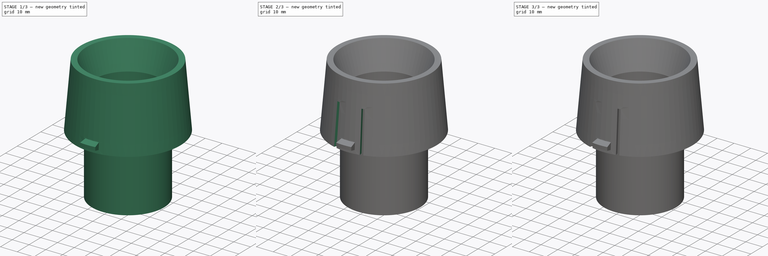
[diagram: build sequence overview — one tinted view per stage of 3, left to right]
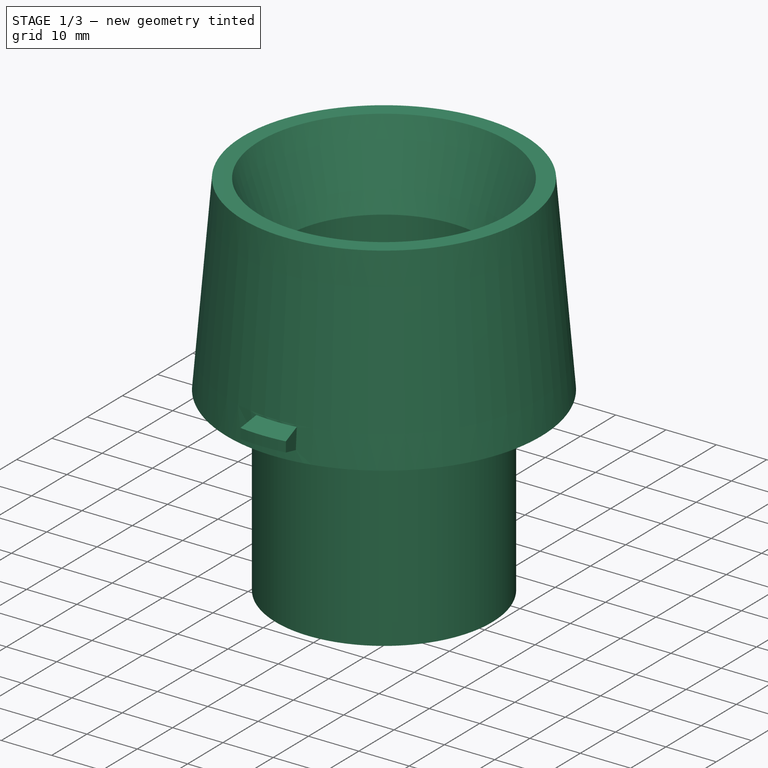
[diagram: stage 1 of 3 — iso view after this stage's code; geometry added in this stage tinted green]
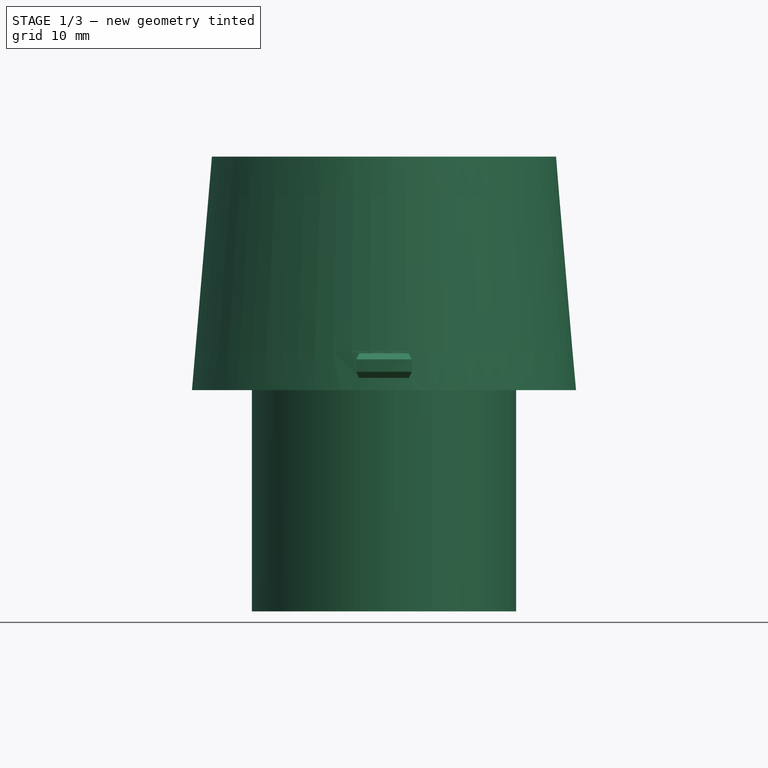
[diagram: stage 1 of 3 — front view after this stage's code; geometry added in this stage tinted green]
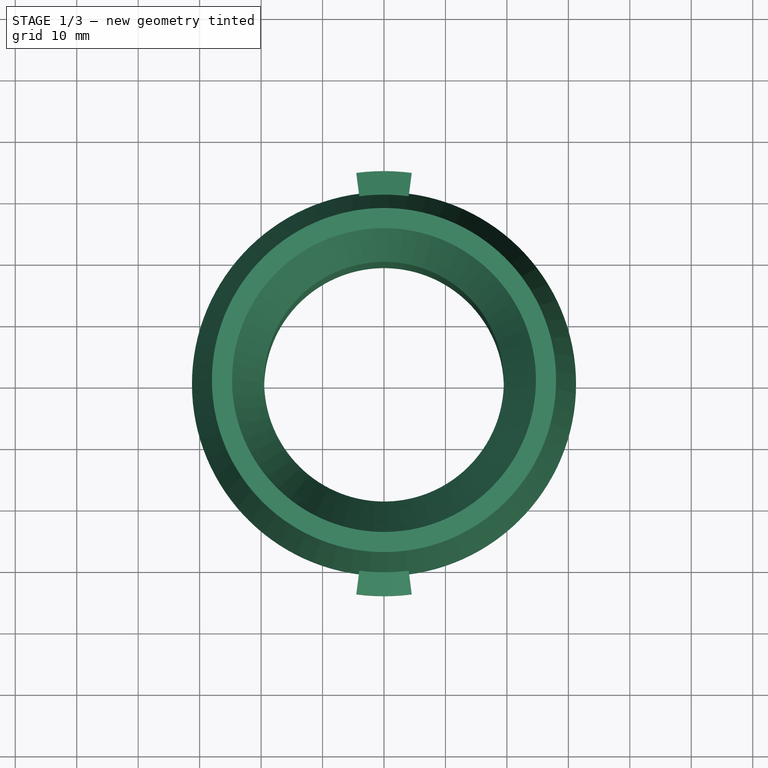
[diagram: stage 1 of 3 — top view after this stage's code; geometry added in this stage tinted green]
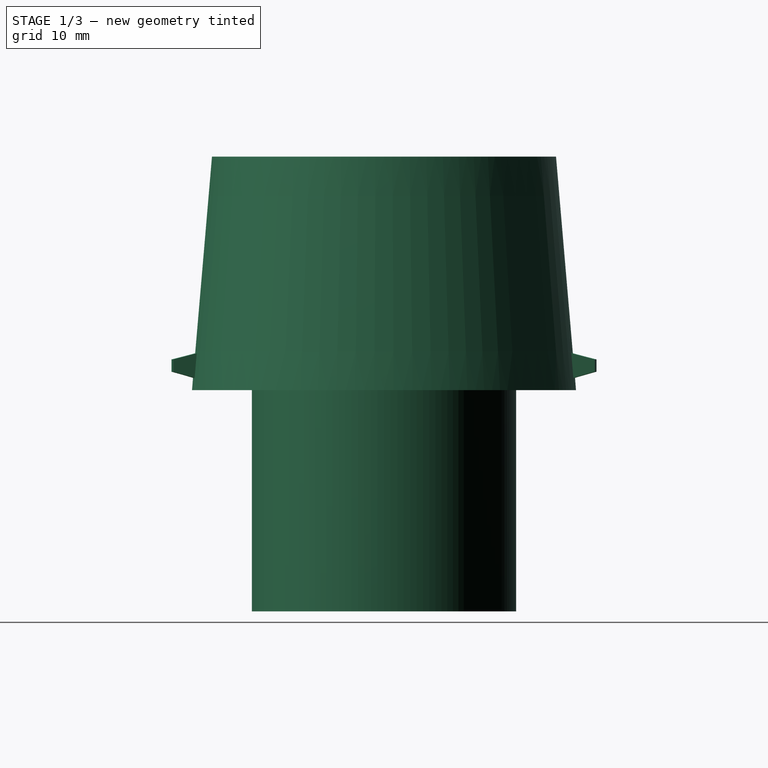
[diagram: stage 1 of 3 — right view after this stage's code; geometry added in this stage tinted green]
FCSTD DOCUMENT  (FreeCAD 0.19R23141 (Git))
Label: VacuumAdapter
License: All rights reserved
LicenseURL: http://en.wikipedia.org/wiki/All_rights_reserved
objects: Sketcher::SketchObject×4, PartDesign::Revolution×2, PartDesign::Pocket×1, PartDesign::Pad×1, PartDesign::PolarPattern×1, PartDesign::Body×1
note: 14 computed .brp shape members not serialized (recipe doc carries the construction recipe); baked Part::Feature solids carry a one-line shape summary decoded from their .brp

FEATURE [Sketcher::SketchObject] Sketch
  MapMode = 5
  Placement = pos=(0,0,0) rot=(1,0,0;1.5708rad)
  Support = -> [XZ_Plane]
  sketch-geometry (11):
    g0: LineSegment StartX=-21.5 StartY=58 StartZ=0 EndX=-21.5 EndY=0 EndZ=0
    g1: LineSegment StartX=-21.5 StartY=0 StartZ=0 EndX=-19.5 EndY=0 EndZ=0
    g2: LineSegment StartX=-19.5 StartY=0 StartZ=0 EndX=-19.5 EndY=58.3244 EndZ=0
    g3: LineSegment StartX=-28 StartY=74 StartZ=0 EndX=-31.25 EndY=36 EndZ=0
    g4: LineSegment StartX=-31.25 StartY=36 StartZ=0 EndX=-29.2427 EndY=36 EndZ=0
    g5: LineSegment StartX=-29.2427 StartY=36 StartZ=0 EndX=-26.1638 EndY=72 EndZ=0
    g6: LineSegment StartX=-28 StartY=74 StartZ=0 EndX=-24.7219 EndY=74 EndZ=0
    g7: LineSegment StartX=-26.1638 StartY=72 StartZ=0 EndX=-21.5 EndY=58 EndZ=0
    g8: LineSegment StartX=-24.7219 StartY=74 StartZ=0 EndX=-19.5 EndY=58.3244 EndZ=0
    g9: LineSegment [constr] StartX=-26.1638 StartY=72 StartZ=0 EndX=-24.2663 EndY=72.6321 EndZ=0
    g10: LineSegment [constr] StartX=-26.1638 StartY=72 StartZ=0 EndX=-28.1565 EndY=72.1704 EndZ=0
  constraints (33):
    c: PointOnObject(g0,g-1)
    c: Vertical(g0)
    c: Coincident(g0,g1)
    c: PointOnObject(g1,g-1)
    c: Coincident(g1,g2)
    c: Vertical(g2)
    c: DistanceX(g0,g-1) = 21.5
    c: DistanceX(g1,g1) = 2
    c: DistanceX(g3,g-1) = 31.25
    c: DistanceY(g3,g3) = 38
    c: DistanceX(g3,g-1) = 28
    c: DistanceY(g-1,g3) = 36
    c: Coincident(g4,g3)
    c: Horizontal(g4)
    c: Coincident(g5,g4)
    c: DistanceY(g5,g3) = 2
    c: Parallel(g5,g3)
    c: Coincident(g6,g3)
    c: Horizontal(g6)
    c: Coincident(g7,g5)
    c: Coincident(g7,g0)
    c: Coincident(g8,g6)
    c: Coincident(g8,g2)
    c: Parallel(g8,g7)
    c: Coincident(g9,g5)
    c: PointOnObject(g9,g8)
    c: Coincident(g10,g5)
    c: PointOnObject(g10,g3)
    c: Equal(g10,g9)
    c: Perpendicular(g3,g10)
    c: Perpendicular(g8,g9)
    c: Distance(g9) = 2
    c: DistanceY(g0,g5) = 14
FEATURE [PartDesign::Revolution] Revolution
  Angle = 360
  Axis = (0,2e-16,1)
  Base = (0,0,0)
  Placement = pos=(0,0,0) rot=(1,0,0;1.5708rad)
  Profile = -> Sketch
  ReferenceAxis = -> Sketch [V_Axis]
FEATURE [Sketcher::SketchObject] Sketch001
  ExternalGeometry = -> [Revolution]
  MapMode = 5
  Placement = pos=(0,0,0) rot=(0.57735,0.57735,0.57735;2.0944rad)
  Support = -> [YZ_Plane]
  sketch-geometry (12):
    g0: LineSegment [constr] StartX=-31.25 StartY=36 StartZ=0 EndX=-28 EndY=74 EndZ=0
    g1: LineSegment [constr] StartX=28 StartY=74 StartZ=0 EndX=31.25 EndY=36 EndZ=0
    g2: LineSegment StartX=-31.0789 StartY=38 StartZ=0 EndX=-34.5789 EndY=39 EndZ=0
    g3: LineSegment StartX=-34.5789 StartY=39 StartZ=0 EndX=-34.5789 EndY=41 EndZ=0
    g4: LineSegment StartX=-34.5789 StartY=41 StartZ=0 EndX=-30.7368 EndY=42 EndZ=0
    g5: LineSegment StartX=-30.7368 StartY=42 StartZ=0 EndX=-31.0789 EndY=38 EndZ=0
    g6: LineSegment StartX=30.7368 StartY=42 StartZ=0 EndX=34.5789 EndY=41 EndZ=0
    g7: LineSegment StartX=34.5789 StartY=41 StartZ=0 EndX=34.5789 EndY=39 EndZ=0
    g8: LineSegment StartX=34.5789 StartY=39 StartZ=0 EndX=31.0789 EndY=38 EndZ=0
    g9: LineSegment StartX=31.0789 StartY=38 StartZ=0 EndX=30.7368 EndY=42 EndZ=0
    g10: LineSegment [constr] StartX=-34.5789 StartY=39 StartZ=0 EndX=0 EndY=0 EndZ=0
    g11: LineSegment [constr] StartX=0 StartY=0 StartZ=0 EndX=34.5789 EndY=39 EndZ=0
  constraints (32):
    c: Coincident(g0,g-3)
    c: Coincident(g0,g-4)
    c: Coincident(g1,g-4)
    c: Coincident(g1,g-3)
    c: PointOnObject(g2,g0)
    c: Coincident(g2,g3)
    c: Coincident(g3,g4)
    c: PointOnObject(g4,g0)
    c: Coincident(g4,g5)
    c: Coincident(g5,g2)
    c: PointOnObject(g6,g1)
    c: Coincident(g6,g7)
    c: Coincident(g7,g8)
    c: PointOnObject(g8,g1)
    c: Coincident(g8,g9)
    c: Coincident(g9,g6)
    c: Vertical(g7)
    c: Equal(g7,g3)
    c: Vertical(g3)
    c: Equal(g2,g8)
    c: DistanceX(g2,g2) = 3.5
    c: DistanceY(g3,g3) = 2
    c: DistanceY(g5,g5) = 4
    c: Equal(g6,g4)
    c: Coincident(g2,g10)
    c: Coincident(g10,g-1)
    c: Coincident(g10,g11)
    c: Coincident(g11,g7)
    c: Equal(g11,g10)
    c: DistanceY(g0,g2) = 2
    c: Equal(g5,g9)
    c: DistanceY(g2,g3) = 3
FEATURE [PartDesign::Revolution] Revolution001
  Angle = 15
  Axis = (-2e-16,3e-16,1)
  Base = (0,0,0)
  BaseFeature = -> Revolution
  Midplane = true
  Placement = pos=(0,0,0) rot=(1,0,0;1.5708rad)
  Profile = -> Sketch001
  ReferenceAxis = -> Sketch001 [V_Axis]
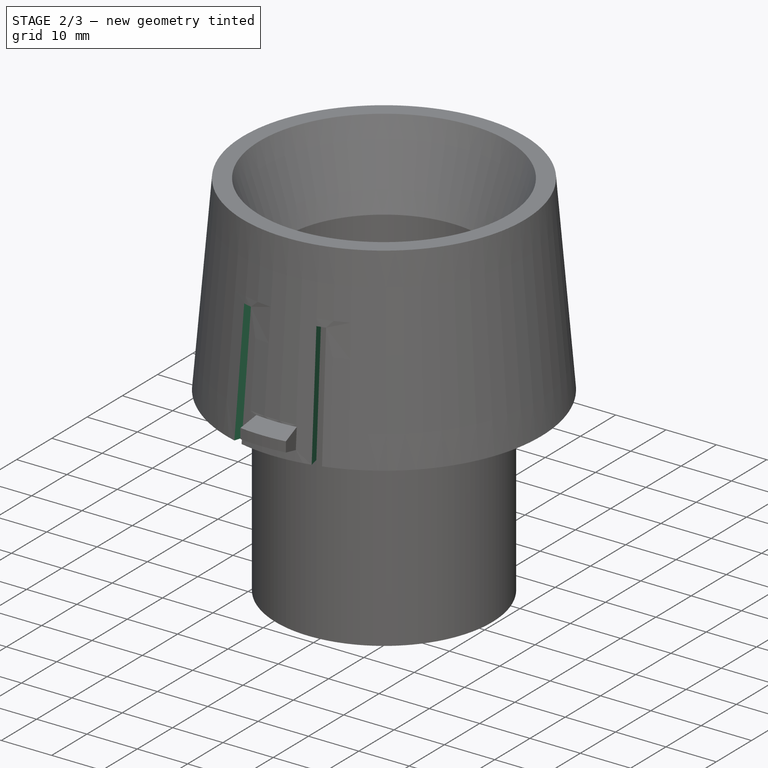
[diagram: stage 2 of 3 — iso view after this stage's code; geometry added in this stage tinted green]
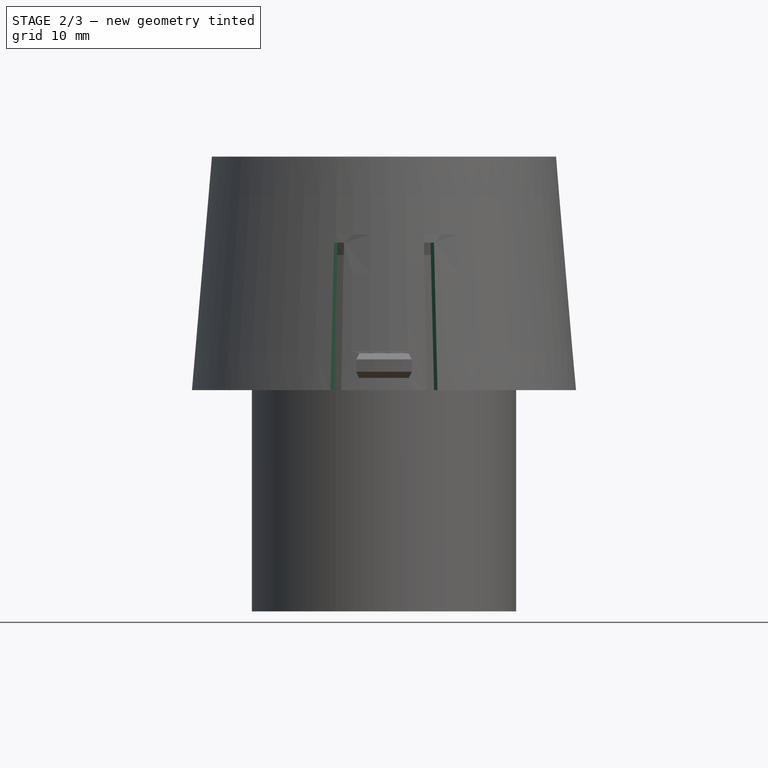
[diagram: stage 2 of 3 — front view after this stage's code; geometry added in this stage tinted green]
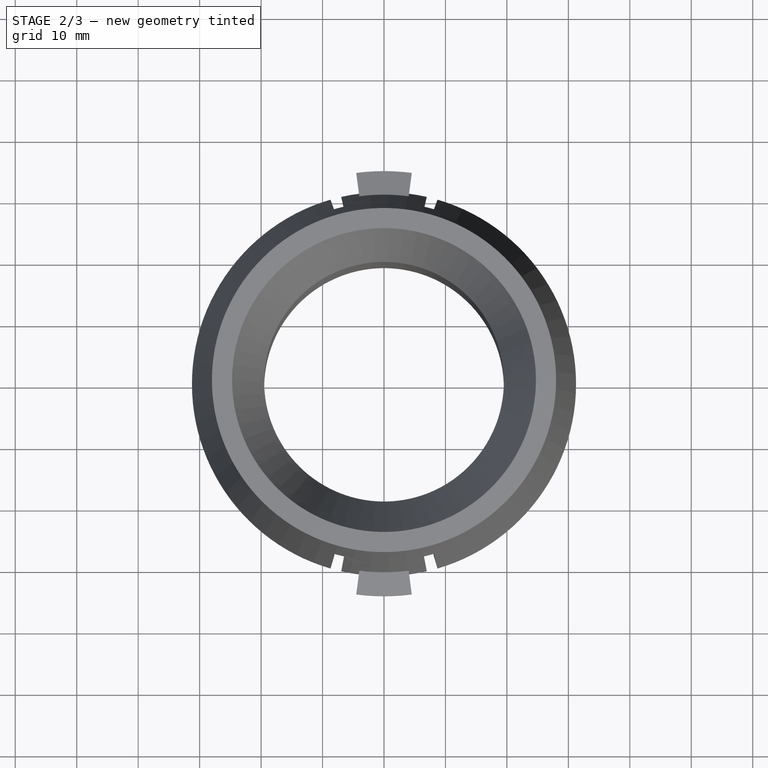
[diagram: stage 2 of 3 — top view after this stage's code; geometry added in this stage tinted green]
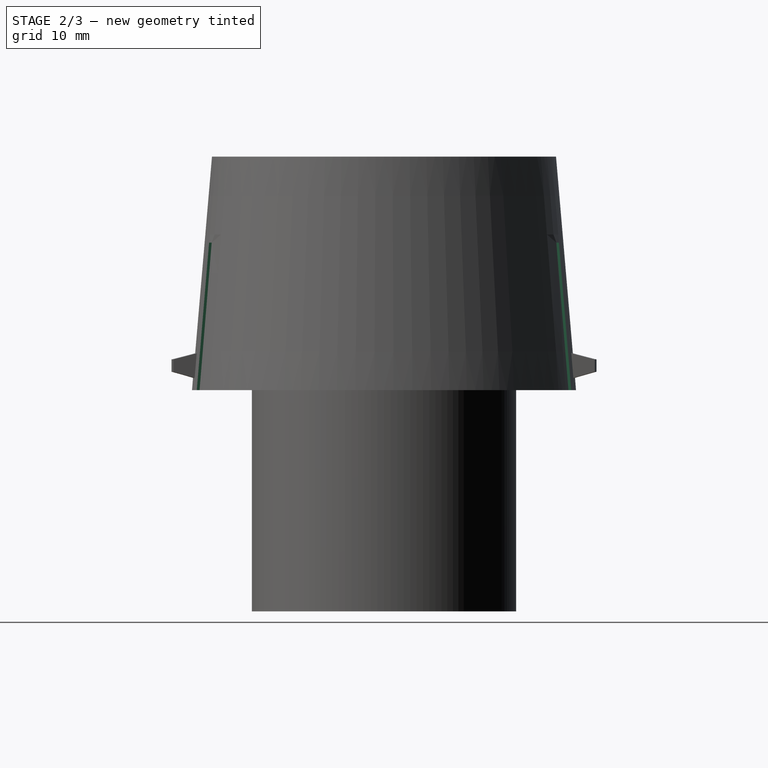
[diagram: stage 2 of 3 — right view after this stage's code; geometry added in this stage tinted green]
FEATURE [Sketcher::SketchObject] Sketch002
  MapMode = 5
  Placement = pos=(0,0,0) rot=(0,1,0;3.14159rad)
  Support = -> [XY_Plane]
  sketch-geometry (32):
    g0: ArcOfCircle CenterX=-1.335e-13 CenterY=0 CenterZ=0 NormalX=0 NormalY=0 NormalZ=1 AngleXU=0 Radius=35.9026 StartAngle=1.79551 EndAngle=1.85306
    g1: ArcOfCircle CenterX=-1.335e-13 CenterY=0 CenterZ=0 NormalX=0 NormalY=0 NormalZ=1 AngleXU=0 Radius=24 StartAngle=1.79551 EndAngle=1.85306
    g2: ArcOfCircle CenterX=-1.335e-13 CenterY=0 CenterZ=0 NormalX=0 NormalY=0 NormalZ=1 AngleXU=0 Radius=35.9026 StartAngle=1.28853 EndAngle=1.34609
    g3: ArcOfCircle CenterX=-1.335e-13 CenterY=0 CenterZ=0 NormalX=0 NormalY=0 NormalZ=1 AngleXU=0 Radius=24 StartAngle=1.28853 EndAngle=1.34609
    g4: ArcOfCircle CenterX=-1.335e-13 CenterY=0 CenterZ=0 NormalX=0 NormalY=0 NormalZ=1 AngleXU=0 Radius=24 StartAngle=4.43012 EndAngle=4.48768
    g5: ArcOfCircle CenterX=-1.335e-13 CenterY=0 CenterZ=0 NormalX=0 NormalY=0 NormalZ=1 AngleXU=0 Radius=35.9026 StartAngle=4.43012 EndAngle=4.48768
    g6: ArcOfCircle CenterX=-1.335e-13 CenterY=0 CenterZ=0 NormalX=0 NormalY=0 NormalZ=1 AngleXU=0 Radius=35.9026 StartAngle=4.9371 EndAngle=4.99465
    g7: ArcOfCircle CenterX=-1.335e-13 CenterY=0 CenterZ=0 NormalX=0 NormalY=0 NormalZ=1 AngleXU=0 Radius=24 StartAngle=4.9371 EndAngle=4.99465
    g8: LineSegment [constr] StartX=10 StartY=-34.4819 StartZ=0 EndX=-1.35e-13 EndY=0 EndZ=0
    g9: LineSegment [constr] StartX=-1.335e-13 StartY=0 StartZ=0 EndX=8 EndY=-35 EndZ=0
    g10: LineSegment [constr] StartX=-1.335e-13 StartY=0 StartZ=0 EndX=-8 EndY=-35 EndZ=0
    g11: LineSegment [constr] StartX=-1.335e-13 StartY=0 StartZ=0 EndX=-10 EndY=-34.4819 EndZ=0
    g12: LineSegment [constr] StartX=-1.335e-13 StartY=0 StartZ=0 EndX=10 EndY=34.4819 EndZ=0
    g13: LineSegment [constr] StartX=-1.335e-13 StartY=0 StartZ=0 EndX=8 EndY=35 EndZ=0
    g14: LineSegment [constr] StartX=-1.335e-13 StartY=0 StartZ=0 EndX=-8 EndY=35 EndZ=0
    g15: LineSegment [constr] StartX=-1.335e-13 StartY=0 StartZ=0 EndX=-10 EndY=34.4819 EndZ=0
    g16: LineSegment [constr] StartX=0 StartY=35 StartZ=0 EndX=-8 EndY=35 EndZ=0
    g17: LineSegment [constr] StartX=0 StartY=35 StartZ=0 EndX=8 EndY=35 EndZ=0
    g18: LineSegment [constr] StartX=8 StartY=-35 StartZ=0 EndX=0 EndY=-35 EndZ=0
    g19: LineSegment [constr] StartX=0 StartY=-35 StartZ=0 EndX=-8 EndY=-35 EndZ=0
    g20: LineSegment [constr] StartX=10 StartY=-34.4819 StartZ=0 EndX=0 EndY=-34.4819 EndZ=0
    g21: LineSegment [constr] StartX=0 StartY=-34.4819 StartZ=0 EndX=-10 EndY=-34.4819 EndZ=0
    g22: LineSegment [constr] StartX=10 StartY=34.4819 StartZ=0 EndX=0 EndY=34.4819 EndZ=0
    g23: LineSegment [constr] StartX=0 StartY=34.4819 StartZ=0 EndX=-10 EndY=34.4819 EndZ=0
    g24: LineSegment StartX=5.3478 StartY=-23.3966 StartZ=0 EndX=8 EndY=-35 EndZ=0
    g25: LineSegment StartX=10 StartY=-34.4819 StartZ=0 EndX=6.68474 EndY=-23.0503 EndZ=0
    g26: LineSegment StartX=-5.3478 StartY=-23.3966 StartZ=0 EndX=-8 EndY=-35 EndZ=0
    g27: LineSegment StartX=-10 StartY=-34.4819 StartZ=0 EndX=-6.68474 EndY=-23.0503 EndZ=0
    g28: LineSegment StartX=10 StartY=34.4819 StartZ=0 EndX=6.68474 EndY=23.0503 EndZ=0
    g29: LineSegment StartX=5.3478 StartY=23.3966 StartZ=0 EndX=8 EndY=35 EndZ=0
    g30: LineSegment StartX=-5.3478 StartY=23.3966 StartZ=0 EndX=-8 EndY=35 EndZ=0
    g31: LineSegment StartX=-10 StartY=34.4819 StartZ=0 EndX=-6.68474 EndY=23.0503 EndZ=0
  constraints (86):
    c: Coincident(g0,g-1)
    c: Coincident(g1,g0)
    c: Coincident(g2,g0)
    c: Coincident(g3,g0)
    c: Coincident(g4,g0)
    c: Coincident(g5,g0)
    c: Coincident(g6,g0)
    c: Coincident(g7,g0)
    c: Coincident(g8,g0)
    c: Coincident(g8,g9)
    c: Coincident(g9,g6)
    c: Coincident(g10,g0)
    c: Coincident(g10,g5)
    c: Coincident(g11,g0)
    c: Coincident(g11,g5)
    c: Coincident(g12,g0)
    c: Coincident(g12,g2)
    c: Coincident(g13,g0)
    c: Coincident(g13,g2)
    c: Coincident(g14,g0)
    c: Coincident(g14,g0)
    c: Coincident(g15,g0)
    c: Coincident(g15,g0)
    c: PointOnObject(g16,g-2)
    c: Coincident(g16,g0)
    c: Horizontal(g16)
    c: Coincident(g16,g17)
    c: Coincident(g17,g2)
    c: Horizontal(g17)
    c: Coincident(g18,g6)
    c: PointOnObject(g18,g-2)
    c: Horizontal(g18)
    c: Coincident(g19,g18)
    c: Coincident(g19,g5)
    c: Horizontal(g19)
    c: Equal(g19,g18)
    c: Equal(g17,g16)
    c: Equal(g13,g9)
    c: DistanceY(g18,g0) = 35
    c: Coincident(g20,g6)
    c: PointOnObject(g20,g-2)
    c: Horizontal(g20)
    c: Coincident(g21,g20)
    c: Coincident(g21,g5)
    c: Horizontal(g21)
    c: Coincident(g22,g2)
    c: PointOnObject(g22,g-2)
    c: Horizontal(g22)
    c: Coincident(g23,g22)
    c: Coincident(g23,g0)
    c: Horizontal(g23)
    c: Equal(g23,g22)
    c: Equal(g22,g20)
    c: Equal(g20,g21)
    c: Coincident(g8,g6)
    c: Equal(g16,g19)
    c: PointOnObject(g7,g8)
    c: PointOnObject(g7,g9)
    c: PointOnObject(g4,g10)
    c: PointOnObject(g4,g11)
    c: PointOnObject(g1,g15)
    c: PointOnObject(g1,g14)
    c: PointOnObject(g3,g13)
    c: PointOnObject(g3,g12)
    c: Radius(g4) = 24
    c: Equal(g4,g7)
    c: Equal(g4,g3)
    c: Equal(g4,g1)
    c: DistanceX(g6,g6) = 2
    c: DistanceX(g5,g6) = 16
    c: Coincident(g24,g7)
    c: Coincident(g24,g6)
    c: Coincident(g25,g6)
    c: Coincident(g25,g7)
    c: Coincident(g26,g4)
    c: Coincident(g26,g5)
    c: Coincident(g27,g5)
    c: Coincident(g27,g4)
    c: Coincident(g28,g2)
    c: Coincident(g28,g3)
    c: Coincident(g29,g3)
    c: Coincident(g29,g2)
    c: Coincident(g30,g1)
    c: Coincident(g30,g0)
    c: Coincident(g31,g0)
    c: Coincident(g31,g1)
FEATURE [PartDesign::Pocket] Pocket
  BaseFeature = -> Revolution001
  Length = 60
  Length2 = 100
  Placement = pos=(0,0,0) rot=(1,0,0;1.5708rad)
  Profile = -> Sketch002
  Type = 0
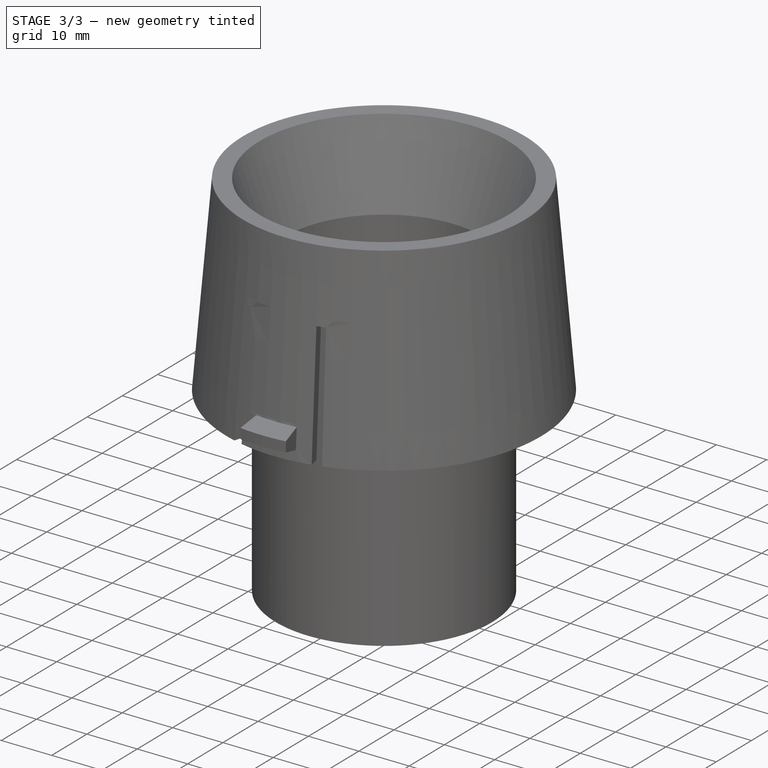
[diagram: stage 3 of 3 — iso view after this stage's code; geometry added in this stage tinted green]
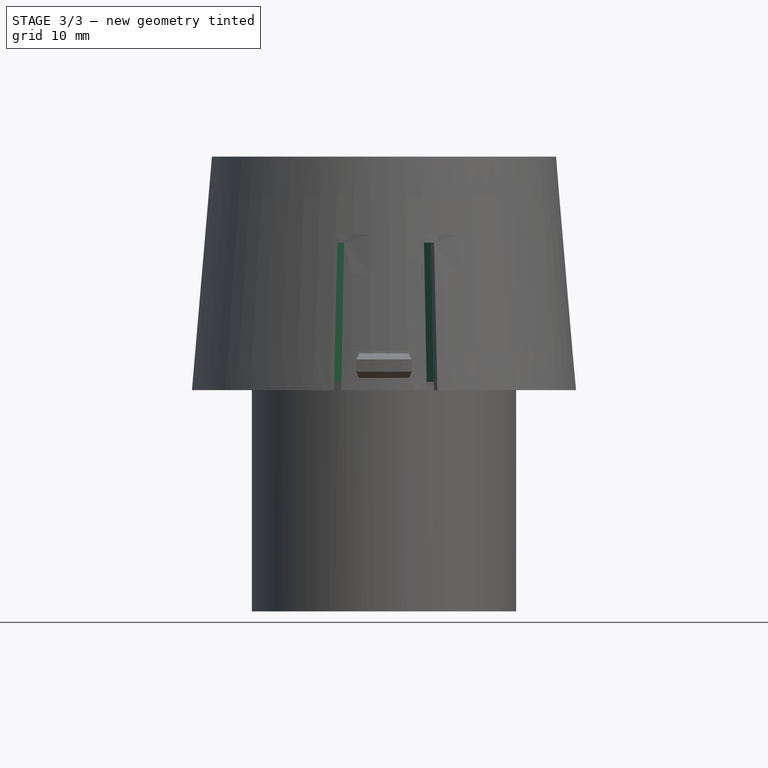
[diagram: stage 3 of 3 — front view after this stage's code; geometry added in this stage tinted green]
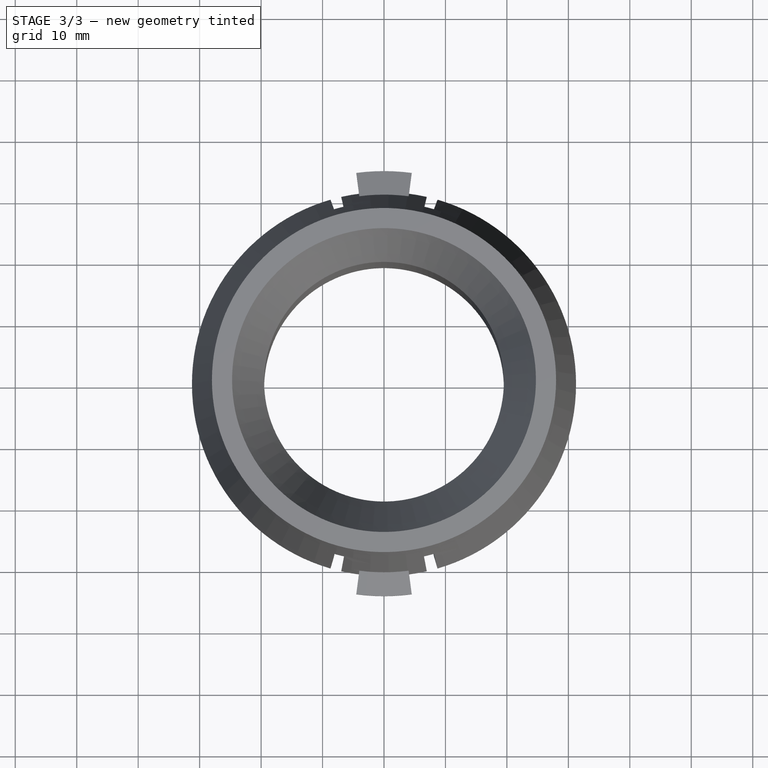
[diagram: stage 3 of 3 — top view after this stage's code; geometry added in this stage tinted green]
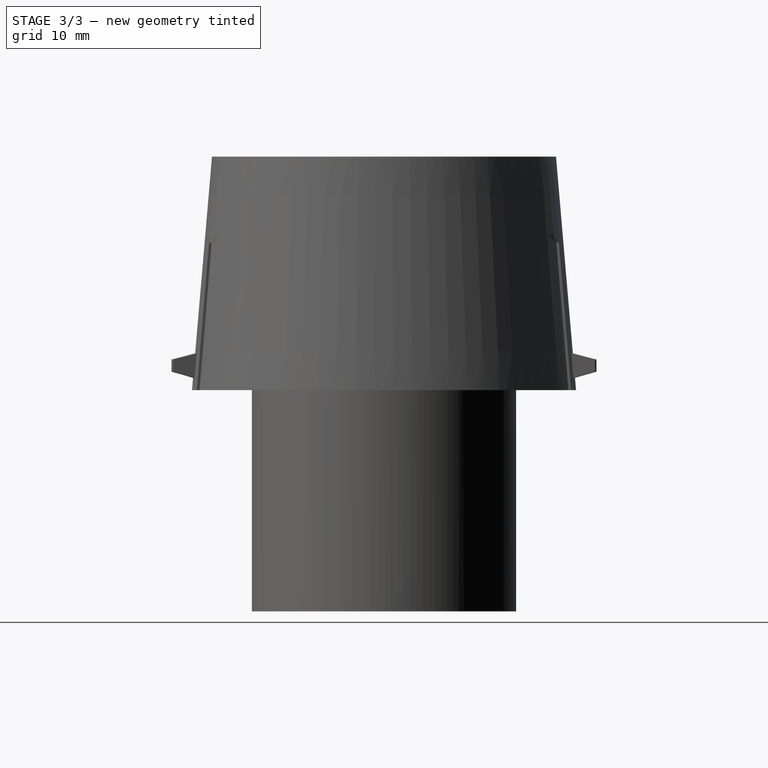
[diagram: stage 3 of 3 — right view after this stage's code; geometry added in this stage tinted green]
FEATURE [Sketcher::SketchObject] Sketch003
  MapMode = 5
  Placement = pos=(0,0,0) rot=(1,0,0;1.5708rad)
  Support = -> [XZ_Plane]
  sketch-geometry (5):
    g0: LineSegment StartX=-27.5362 StartY=72.9845 StartZ=0 EndX=-25.2327 EndY=72.9845 EndZ=0
    g1: LineSegment StartX=-25.2327 StartY=72.9845 StartZ=0 EndX=-20.6256 EndY=57.9438 EndZ=0
    g2: LineSegment StartX=-20.6256 StartY=57.9438 StartZ=0 EndX=-20.6256 EndY=37.3476 EndZ=0
    g3: LineSegment StartX=-20.6256 StartY=37.3476 StartZ=0 EndX=-30.3817 EndY=37.3476 EndZ=0
    g4: LineSegment StartX=-30.3817 StartY=37.3476 StartZ=0 EndX=-27.5362 EndY=72.9845 EndZ=0
  constraints (8):
    c: Horizontal(g0)
    c: Coincident(g0,g1)
    c: Coincident(g1,g2)
    c: Vertical(g2)
    c: Coincident(g2,g3)
    c: Horizontal(g3)
    c: Coincident(g3,g4)
    c: Coincident(g4,g0)
FEATURE [PartDesign::Pad] Pad
  BaseFeature = -> Pocket
  Direction = (1,1,1)
  Length = 1.5
  Length2 = 100
  Midplane = true
  Placement = pos=(0,0,0) rot=(1,0,0;1.5708rad)
  Profile = -> Sketch003
  Type = 0
FEATURE [PartDesign::PolarPattern] PolarPattern
  Angle = 360
  Axis = -> Z_Axis
  BaseFeature = -> Pad
  Occurrences = 10
  Originals = -> [Pad]
  Placement = pos=(0,0,0) rot=(1,0,0;1.5708rad)
FEATURE [PartDesign::Body] Body
  Group = -> [Sketch,Revolution,Sketch001,Revolution001,Sketch002,Pocket,Sketch003,Pad,PolarPattern]
  Origin = -> Origin
  Tip = -> PolarPattern
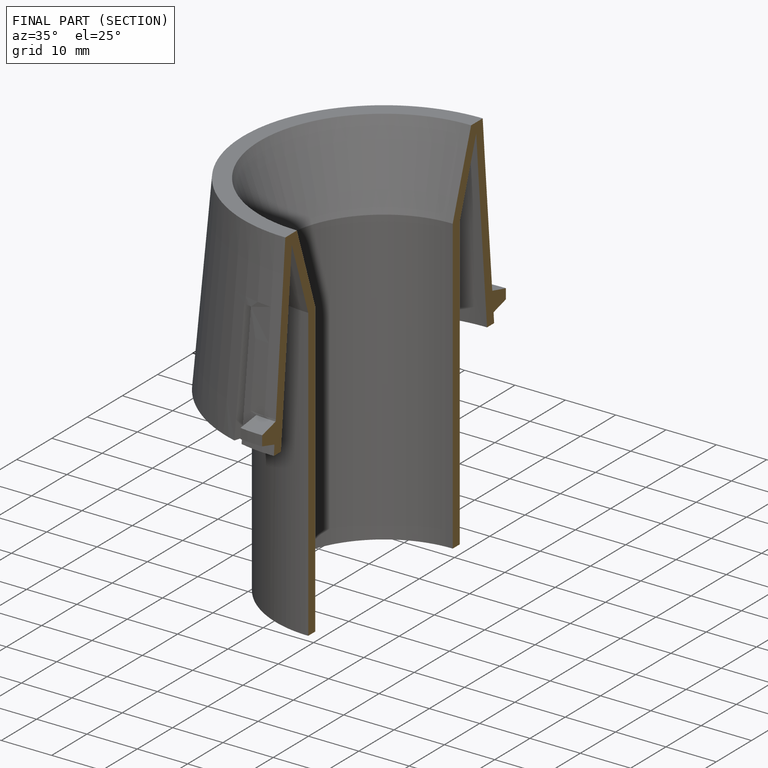
[diagram: finished part — half-section view (interior)]
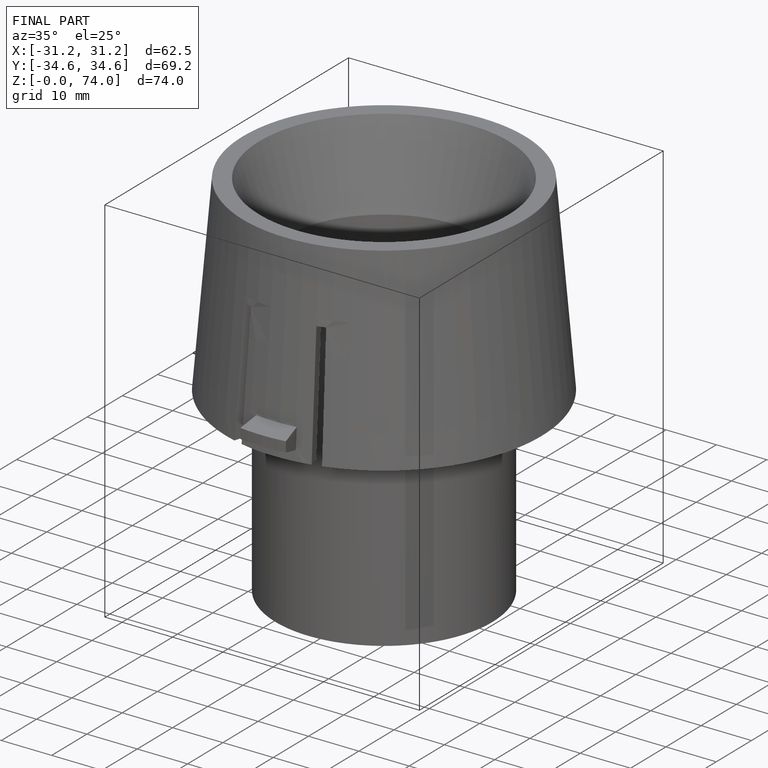
[diagram: finished part — iso view with bounding-box wireframe]
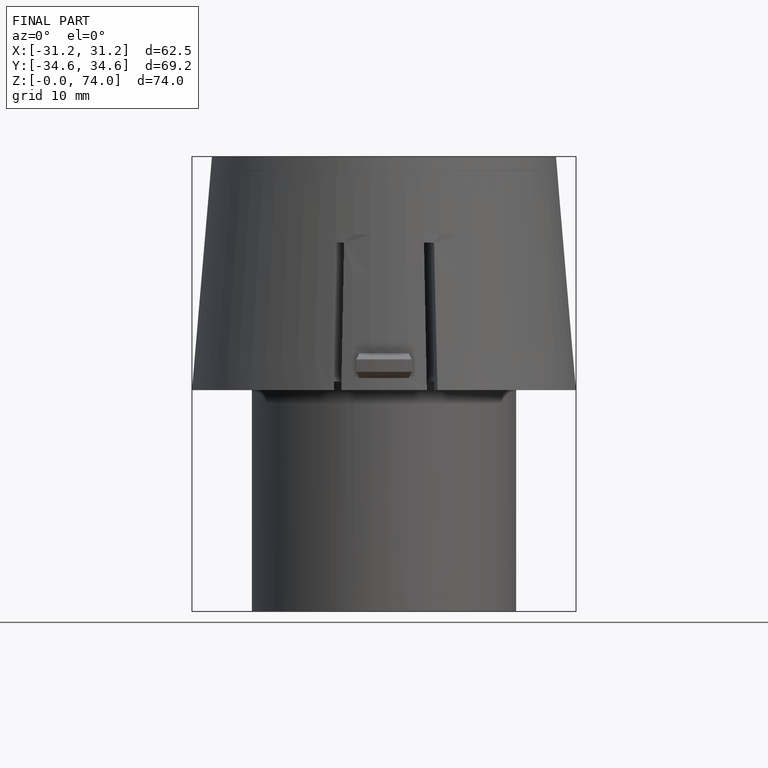
[diagram: finished part — front view with bounding-box wireframe]
